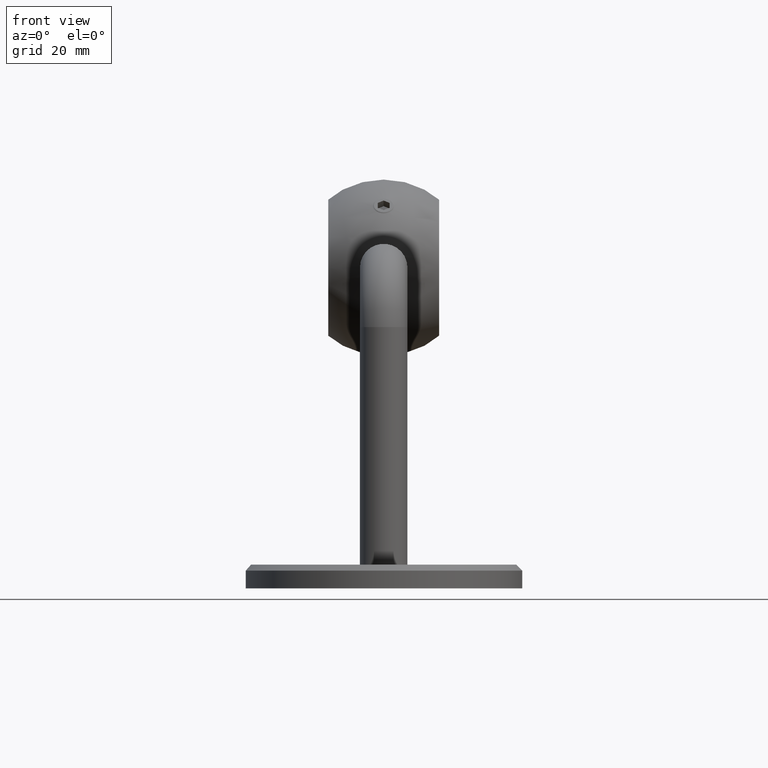
[diagram: clean part render]
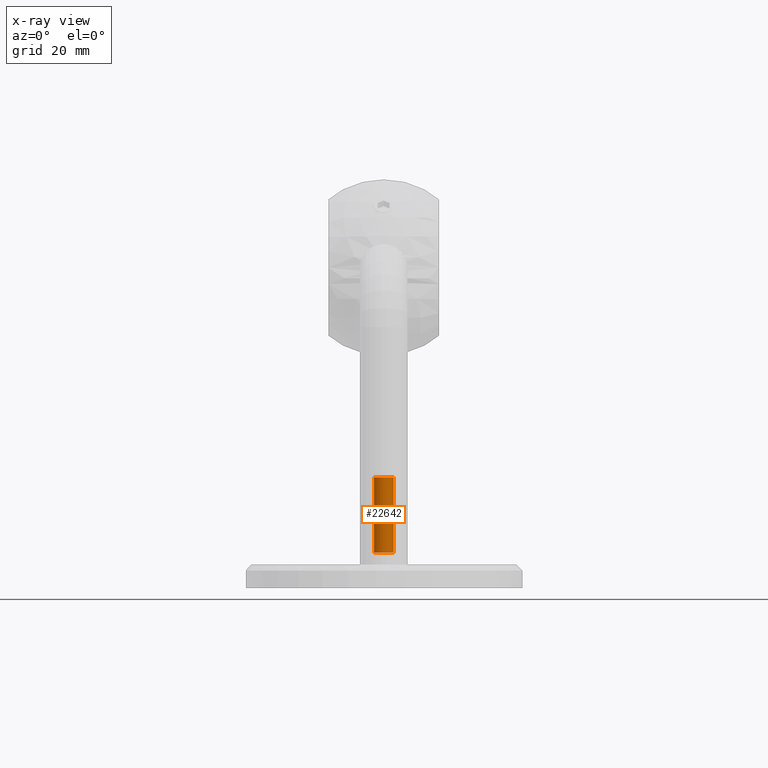
[diagram: x-ray — body ghosted, one internal face saturated and labeled with its STEP entity id]
A machine part, front view, then the same camera in x-ray: the body is ghosted and one INTERNAL B-rep face — a face not visible from any outside direction — is saturated and labeled: STEP entity #22642.
In plain terms, the highlighted cylindrical surface (bore or boss wall) has radius 2.5 mm, axis along (-0, -0, -1).
Its self-contained STEP definition (entity closure, byte-faithful):
#319 = EDGE_LOOP ( 'NONE', ( #20294 ) ) ;
#401 = DIRECTION ( 'NONE',  ( -0.000000000000000000, -0.000000000000000000, -1.000000000000000000 ) ) ;
#993 = DIRECTION ( 'NONE',  ( -0.000000000000000000, -0.000000000000000000, -1.000000000000000000 ) ) ;
#2732 = AXIS2_PLACEMENT_3D ( 'NONE', #9303, #5122, #11462 ) ;
#2933 = FACE_OUTER_BOUND ( 'NONE', #319, .T. ) ;
#5122 = DIRECTION ( 'NONE',  ( 0.000000000000000000, 0.000000000000000000, 1.000000000000000000 ) ) ;
#6382 = CYLINDRICAL_SURFACE ( 'NONE', #16237, 2.499999999999992450 ) ;
#9303 = CARTESIAN_POINT ( 'NONE',  ( 0.000000000000000000, 0.000000000000000000, 3.000000000000007105 ) ) ;
#11131 = AXIS2_PLACEMENT_3D ( 'NONE', #13656, #401, #20613 ) ;
#11462 = DIRECTION ( 'NONE',  ( -1.000000000000000000, 0.000000000000000000, 0.000000000000000000 ) ) ;
#12061 = VERTEX_POINT ( 'NONE', #21188 ) ;
#13656 = CARTESIAN_POINT ( 'NONE',  ( 0.000000000000000000, 0.000000000000000000, 22.00000000000000000 ) ) ;
#16237 = AXIS2_PLACEMENT_3D ( 'NONE', #21006, #993, #27816 ) ;
#17224 = VERTEX_POINT ( 'NONE', #27625 ) ;
#20294 = ORIENTED_EDGE ( 'NONE', *, *, #27917, .F. ) ;
#20613 = DIRECTION ( 'NONE',  ( -1.000000000000000000, 0.000000000000000000, 0.000000000000000000 ) ) ;
#21006 = CARTESIAN_POINT ( 'NONE',  ( 0.000000000000000000, 0.000000000000000000, 0.000000000000000000 ) ) ;
#21188 = CARTESIAN_POINT ( 'NONE',  ( -2.499999999999992450, 0.000000000000000000, 3.000000000000007105 ) ) ;
#21642 = EDGE_CURVE ( 'NONE', #12061, #12061, #26770, .T. ) ;
#22311 = ORIENTED_EDGE ( 'NONE', *, *, #21642, .F. ) ;
#22642 = ADVANCED_FACE ( 'NONE', ( #2933, #23325 ), #6382, .F. ) ;
#23325 = FACE_OUTER_BOUND ( 'NONE', #23685, .T. ) ;
#23685 = EDGE_LOOP ( 'NONE', ( #22311 ) ) ;
#26770 = CIRCLE ( 'NONE', #2732, 2.499999999999992450 ) ;
#27625 = CARTESIAN_POINT ( 'NONE',  ( -2.499999999999994227, 0.000000000000000000, 22.00000000000000000 ) ) ;
#27816 = DIRECTION ( 'NONE',  ( -1.000000000000000000, 0.000000000000000000, 0.000000000000000000 ) ) ;
#27917 = EDGE_CURVE ( 'NONE', #17224, #17224, #27979, .T. ) ;
#27979 = CIRCLE ( 'NONE', #11131, 2.499999999999994227 ) ;